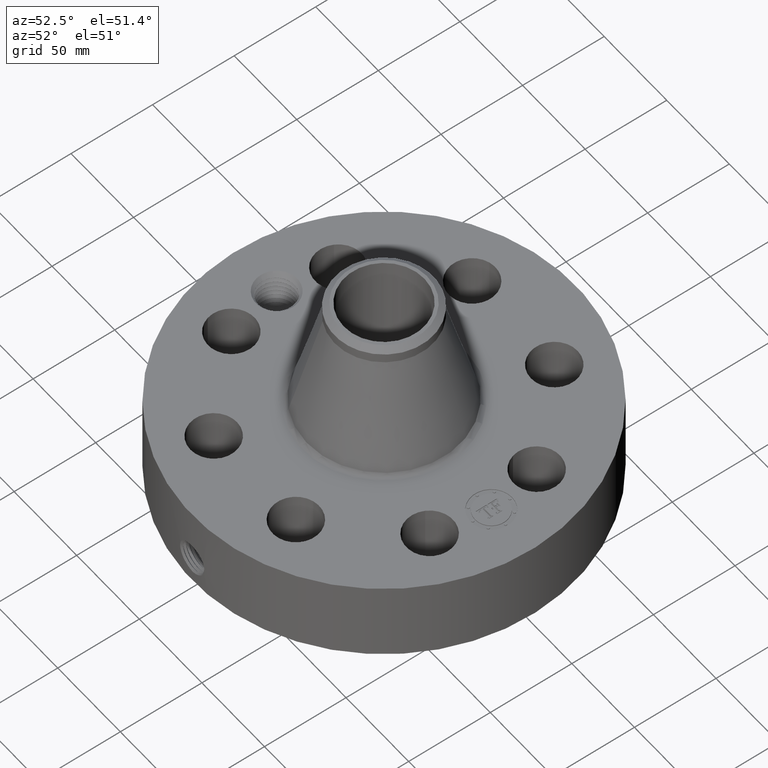
[diagram: clean part render]
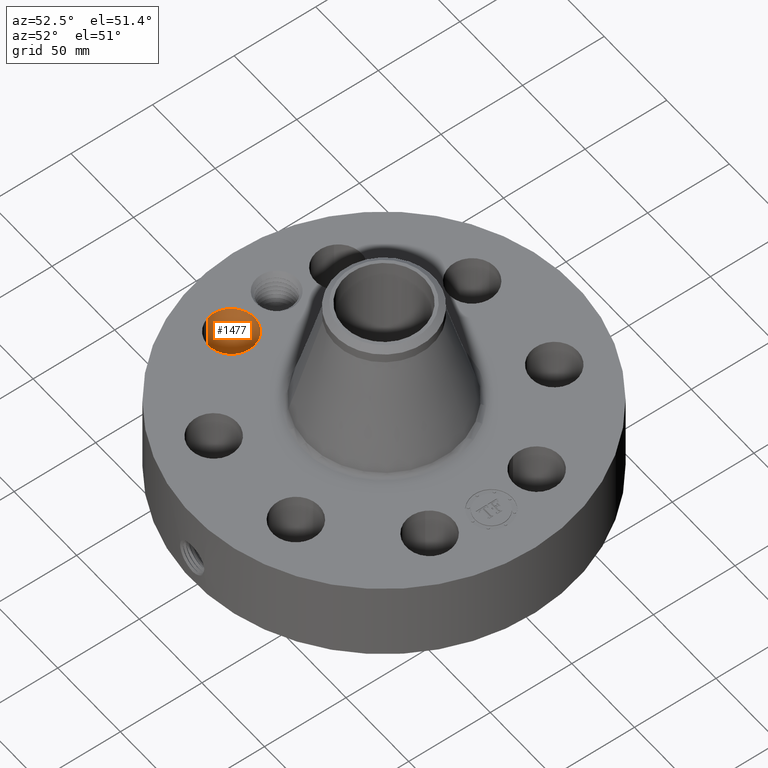
[diagram: same view with one face highlighted and labeled with its STEP entity id]
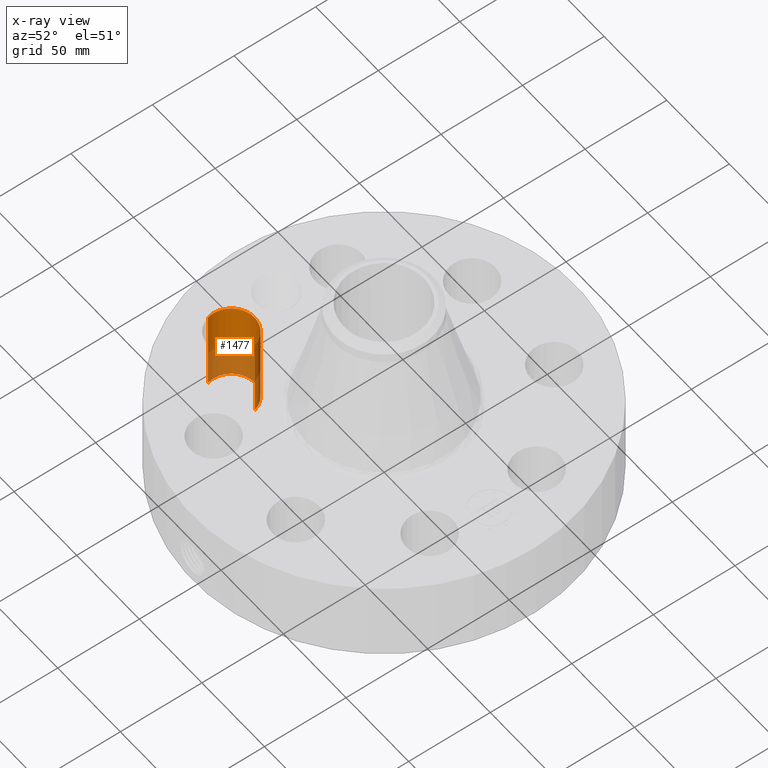
[diagram: x-ray of the same camera — body ghosted, the highlighted face saturated]
A machine part, auxiliary view. The second image highlights one B-rep face of the part: STEP entity #1477.
The next image is the same camera in x-ray: the body ghosted, the highlighted face saturated — about 37% of this face is hidden behind the body in this view.
In plain terms, the highlighted cylindrical surface (edge-blend (fillet) strip) has radius 14.224 mm, axis along (-0, 0, -1).
Its self-contained STEP definition (entity closure, byte-faithful):
#319=AXIS2_PLACEMENT_3D('Circle Axis2P3D',#317,#318,$) ;
#641=AXIS2_PLACEMENT_3D('Circle Axis2P3D',#639,#640,$) ;
#1452=AXIS2_PLACEMENT_3D('Cylinder Axis2P3D',#1449,#1450,#1451) ;
#312=CARTESIAN_POINT('Vertex',(-2.58074562944,-1.1338944468,0.250000000001)) ;
#314=CARTESIAN_POINT('Vertex',(-3.65544121503,-1.44921872168,0.250000000001)) ;
#317=CARTESIAN_POINT('Axis2P3D Location',(-3.11809342224,-1.29155658424,0.250000000001)) ;
#639=CARTESIAN_POINT('Axis2P3D Location',(-3.11809342224,-1.29155658424,2.25000000001)) ;
#643=CARTESIAN_POINT('Vertex',(-3.65544121503,-1.44921872168,2.25000000001)) ;
#645=CARTESIAN_POINT('Vertex',(-2.58074562944,-1.1338944468,2.25000000001)) ;
#1449=CARTESIAN_POINT('Axis2P3D Location',(-3.11809342224,-1.29155658424,2.24606299213)) ;
#1454=CARTESIAN_POINT('Line Origine',(-2.58074562944,-1.1338944468,1.25000000001)) ;
#1459=CARTESIAN_POINT('Line Origine',(-3.65544121503,-1.44921872168,1.25000000001)) ;
#318=DIRECTION('Axis2P3D Direction',(0.,0.,-0.0393700787402)) ;
#640=DIRECTION('Axis2P3D Direction',(0.,0.,-0.0393700787402)) ;
#1450=DIRECTION('Axis2P3D Direction',(-0.,0.,-0.0393700787402)) ;
#1451=DIRECTION('Axis2P3D XDirection',(-0.0377775444876,-0.0110842335096,0.)) ;
#1455=DIRECTION('Vector Direction',(0.,0.,-0.0393700787402)) ;
#1460=DIRECTION('Vector Direction',(0.,0.,-0.0393700787402)) ;
#1456=VECTOR('Line Direction',#1455,0.0393700787402) ;
#1461=VECTOR('Line Direction',#1460,0.0393700787402) ;
#1472=ORIENTED_EDGE('',*,*,#1463,.F.) ;
#1473=ORIENTED_EDGE('',*,*,#321,.T.) ;
#1474=ORIENTED_EDGE('',*,*,#1458,.T.) ;
#1475=ORIENTED_EDGE('',*,*,#647,.F.) ;
#1477=ADVANCED_FACE('PartBody',(#1476),#1453,.F.) ;
#320=CIRCLE('generated circle',#319,0.560000000002) ;
#642=CIRCLE('generated circle',#641,0.560000000002) ;
#1453=CYLINDRICAL_SURFACE('generated cylinder',#1452,0.560000000002) ;
#321=EDGE_CURVE('',#315,#313,#320,.T.) ;
#647=EDGE_CURVE('',#644,#646,#642,.T.) ;
#1458=EDGE_CURVE('',#313,#646,#1457,.F.) ;
#1463=EDGE_CURVE('',#315,#644,#1462,.F.) ;
#1471=EDGE_LOOP('',(#1472,#1473,#1474,#1475)) ;
#1476=FACE_OUTER_BOUND('',#1471,.T.) ;
#1457=LINE('Line',#1454,#1456) ;
#1462=LINE('Line',#1459,#1461) ;
#313=VERTEX_POINT('',#312) ;
#315=VERTEX_POINT('',#314) ;
#644=VERTEX_POINT('',#643) ;
#646=VERTEX_POINT('',#645) ;